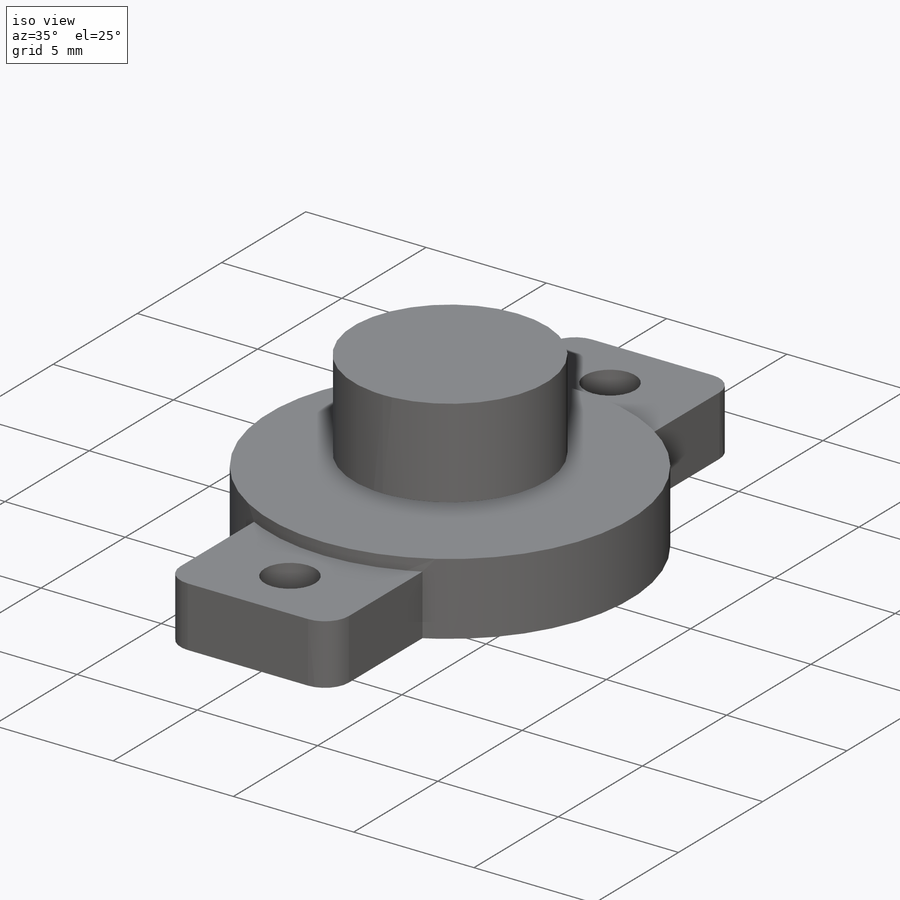
[diagram: iso view]
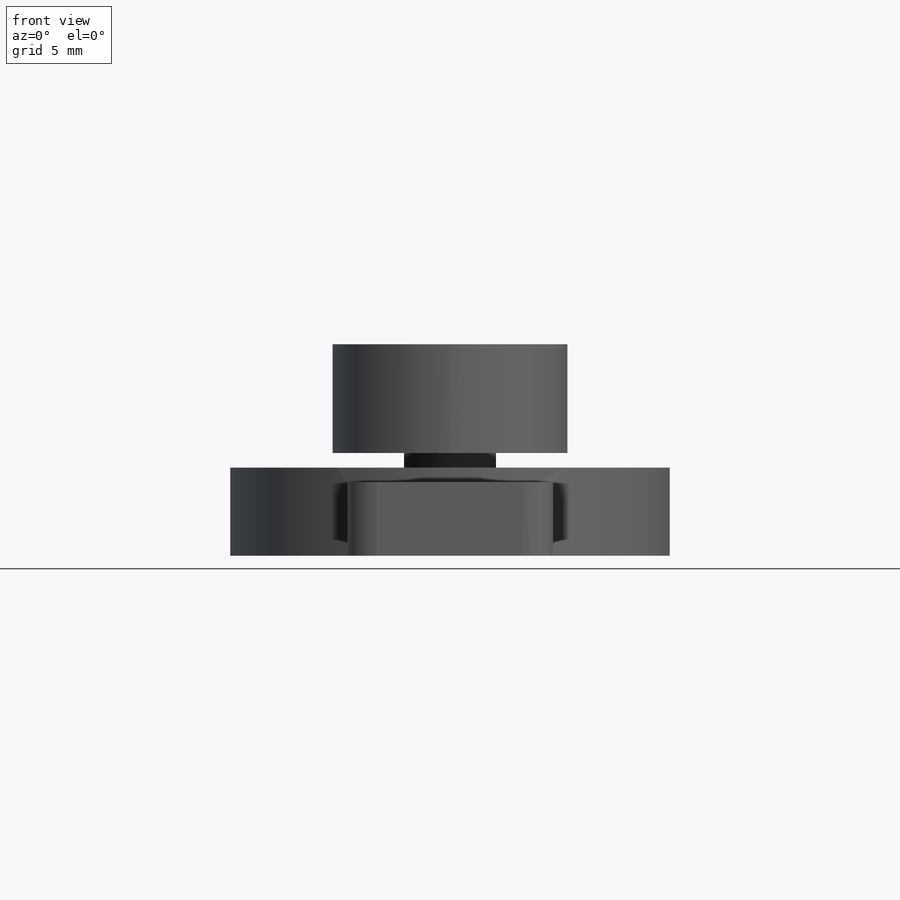
[diagram: front view]
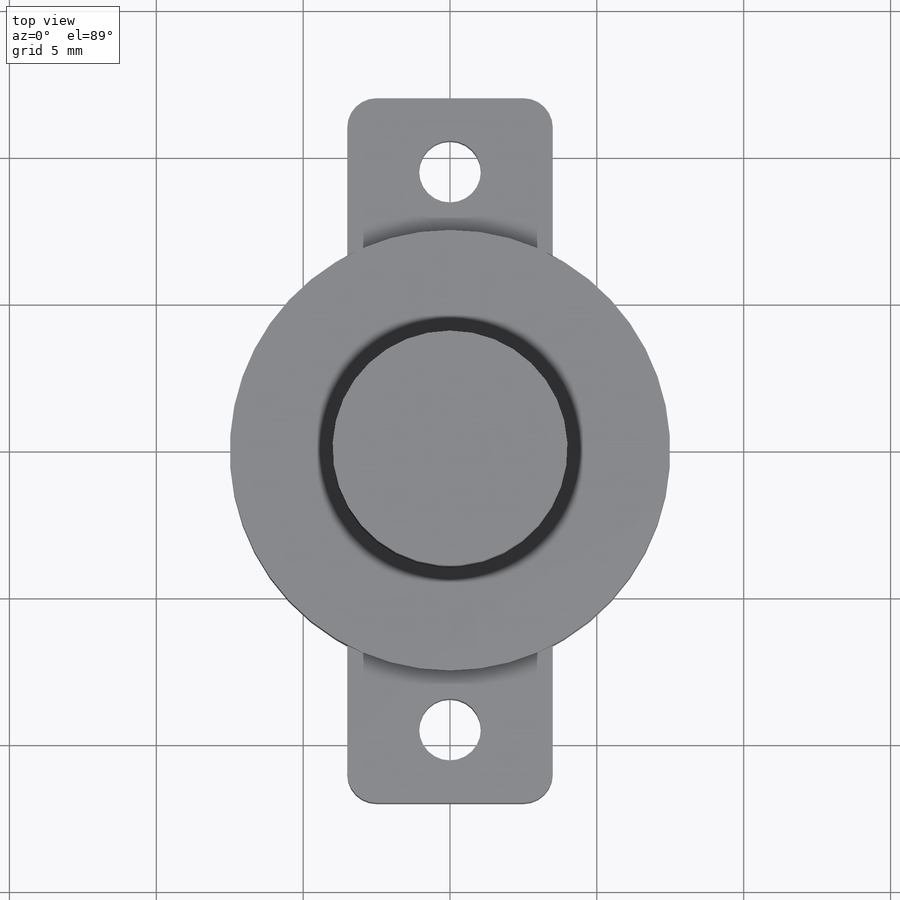
[diagram: top view]
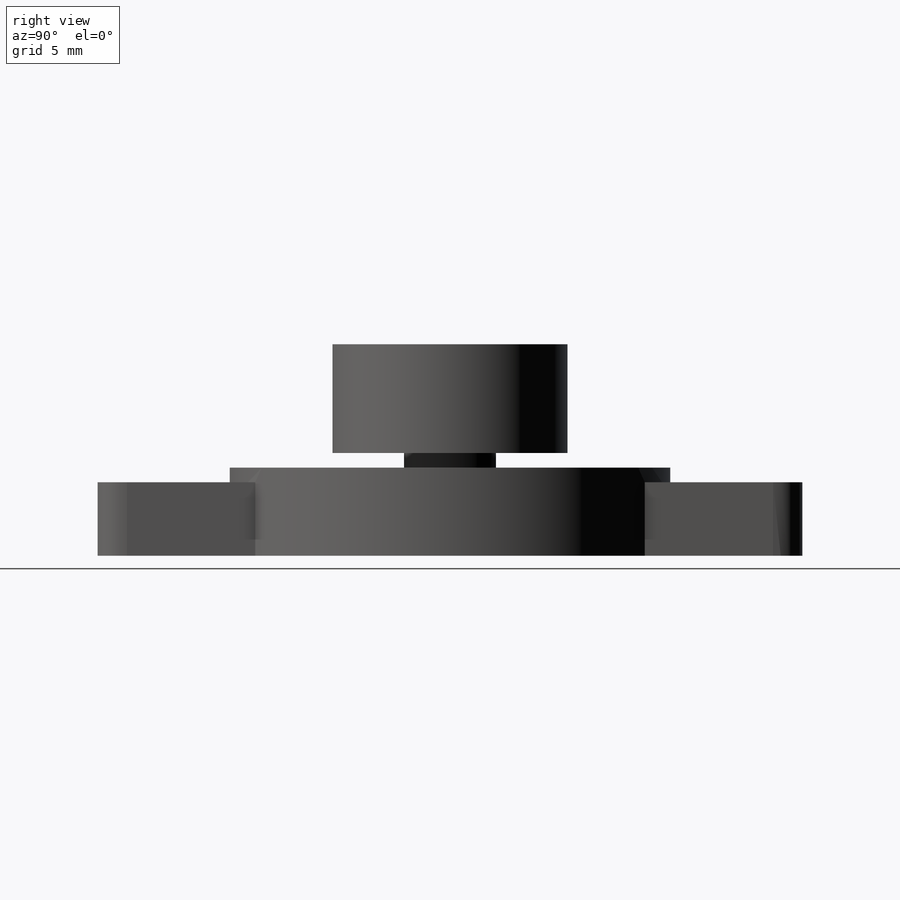
[diagram: right view]
SOLIDWORKS PART (.sldprt)
format: sldprt  version: not decoded by parser v0  size: 190,464 bytes
history: native  units: mm
features: sketch x5, extrude x4, material x1, fillet x1, cut_extrude x1 (+12 scaffold rows collapsed)
feature tree (24):
  scaffold x12  (default folders/planes/origin — collapsed)
  material  "Material <not specified>"
  sketch  "Sketch1"  dims[D1=24.0mm D2=7.0mm]
  extrude  "Boss-Extrude1"  Depth=2.5mm
  fillet  "Fillet1"  Radius=1mm
  sketch  "Sketch2"  dims[D1=15.0mm]
  extrude  "Boss-Extrude2"  Depth=0.5mm
  sketch  "Sketch3"  dims[D2=2.1mm D1=19.0mm]
  cut_extrude  "Cut-Extrude1"  Depth=22.5mm
  sketch  "Sketch5"
  extrude  "Boss-Extrude3"  Depth=0.5mm
  sketch  "Sketch6"  dims[D1=8.0mm]
  extrude  "Boss-Extrude4"  Depth=3.7mm
decode coverage: 10 of 11 modeling features carry decoded parameters
note: suppression state not decoded; provenance and decode notes live in map.json
